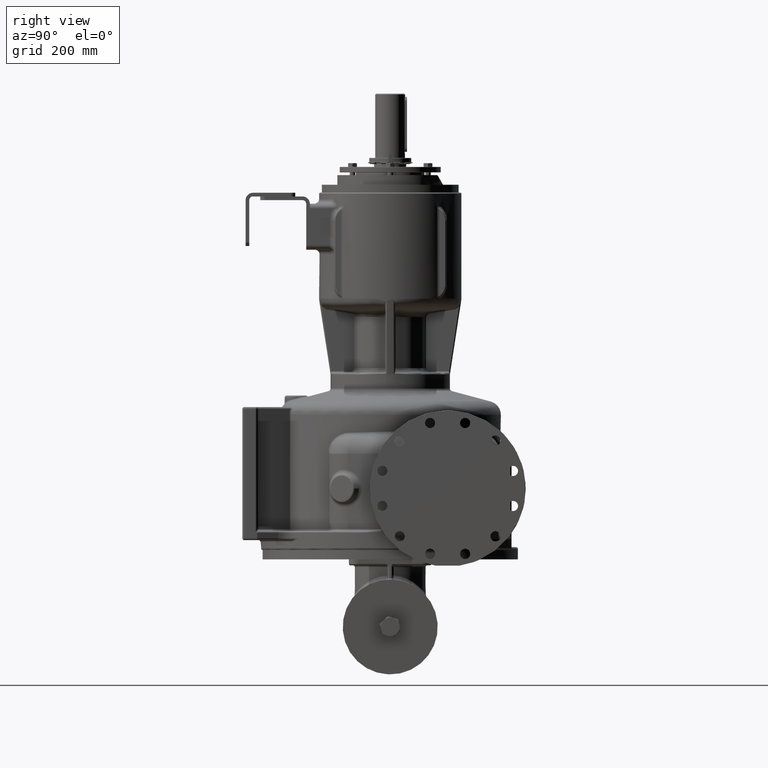
[diagram: clean part render]
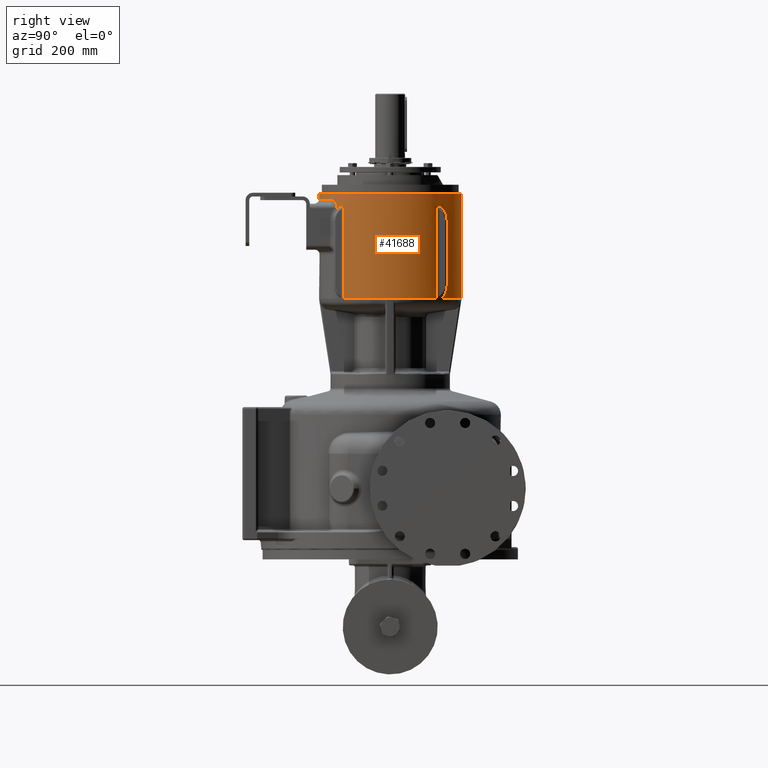
[diagram: same view with one face highlighted and labeled with its STEP entity id]
A machine part, right view. The second image highlights one B-rep face of the part: STEP entity #41688.
In plain terms, the highlighted cylindrical surface (partial cylindrical patch) has radius 155 mm, axis along (0, 0, -1).
Its self-contained STEP definition (entity closure, byte-faithful):
#2824=DIRECTION('',(0.E0,0.E0,-1.E0));
#2825=VECTOR('',#2824,2.28E2);
#2826=CARTESIAN_POINT('',(-2.290527877680E-14,4.77E2,6.415E2));
#2827=LINE('',#2826,#2825);
#2833=DIRECTION('',(0.E0,0.E0,-1.E0));
#2834=VECTOR('',#2833,1.15E1);
#2835=CARTESIAN_POINT('',(2.765063484533E-14,1.67E2,6.415E2));
#2836=LINE('',#2835,#2834);
#3296=CARTESIAN_POINT('',(1.158434894229E2,4.249819690985E2,4.135E2));
#3297=CARTESIAN_POINT('',(1.158977269843E2,4.249209577459E2,4.135538702345E2));
#3298=CARTESIAN_POINT('',(1.160038365956E2,4.248014021320E2,4.136630875072E2));
#3299=CARTESIAN_POINT('',(1.161562148142E2,4.246291898336E2,4.138312559516E2));
#3300=CARTESIAN_POINT('',(1.163014710546E2,4.244645457080E2,4.140029830678E2));
#3301=CARTESIAN_POINT('',(1.164394459883E2,4.243077182113E2,4.141776028084E2));
#3302=CARTESIAN_POINT('',(1.165699408765E2,4.241589995769E2,4.143543471143E2));
#3303=CARTESIAN_POINT('',(1.166927759043E2,4.240186597169E2,4.145323964927E2));
#3304=CARTESIAN_POINT('',(1.168077676349E2,4.238869713010E2,4.147108447614E2));
#3305=CARTESIAN_POINT('',(1.169147513303E2,4.237641837934E2,4.148887210568E2));
#3306=CARTESIAN_POINT('',(1.170135358185E2,4.236505748625E2,4.150648939879E2));
#3307=CARTESIAN_POINT('',(1.171039930826E2,4.235463469010E2,4.152382149360E2));
#3308=CARTESIAN_POINT('',(1.171859088444E2,4.234517986148E2,4.154072122002E2));
#3309=CARTESIAN_POINT('',(1.172591575351E2,4.233671232204E2,4.155703692041E2));
#3310=CARTESIAN_POINT('',(1.173237326800E2,4.232923716625E2,4.157262732698E2));
#3311=CARTESIAN_POINT('',(1.173791924083E2,4.232280949085E2,4.158721173375E2));
#3312=CARTESIAN_POINT('',(1.174101403523E2,4.231921904773E2,4.159613008023E2));
#3313=CARTESIAN_POINT('',(1.174242423677E2,4.231758237323E2,4.160038878351E2));
#3315=CARTESIAN_POINT('',(0.E0,3.22E2,4.135E2));
#3316=DIRECTION('',(0.E0,0.E0,-1.E0));
#3317=DIRECTION('',(7.473773510984E-1,6.643998006209E-1,0.E0));
#3318=AXIS2_PLACEMENT_3D('',#3315,#3316,#3317);
#3320=CARTESIAN_POINT('',(1.174242424277E2,2.208241763478E2,4.160038878404E2));
#3321=CARTESIAN_POINT('',(1.174100553051E2,2.208077108318E2,4.159610560299E2));
#3322=CARTESIAN_POINT('',(1.173789788374E2,2.207716574361E2,4.158715269751E2));
#3323=CARTESIAN_POINT('',(1.173236112823E2,2.207074877503E2,4.157259736738E2));
#3324=CARTESIAN_POINT('',(1.172589959611E2,2.206326898527E2,4.155699918954E2));
#3325=CARTESIAN_POINT('',(1.171857489545E2,2.205480167050E2,4.154068714782E2));
#3326=CARTESIAN_POINT('',(1.171038318326E2,2.204534671409E2,4.152378947331E2));
#3327=CARTESIAN_POINT('',(1.170133727458E2,2.203492374215E2,4.150645936097E2));
#3328=CARTESIAN_POINT('',(1.169145954820E2,2.202356371628E2,4.148884535686E2));
#3329=CARTESIAN_POINT('',(1.168076203947E2,2.201128599050E2,4.147106090700E2));
#3330=CARTESIAN_POINT('',(1.166926407261E2,2.199811856740E2,4.145321945139E2));
#3331=CARTESIAN_POINT('',(1.165698209827E2,2.198408636331E2,4.143541798259E2));
#3332=CARTESIAN_POINT('',(1.164393447309E2,2.196921665650E2,4.141774709646E2));
#3333=CARTESIAN_POINT('',(1.163013910706E2,2.195353635308E2,4.140028859600E2));
#3334=CARTESIAN_POINT('',(1.161561588036E2,2.193707468017E2,4.138311927013E2));
#3335=CARTESIAN_POINT('',(1.160038074234E2,2.191985649812E2,4.136630571143E2));
#3336=CARTESIAN_POINT('',(1.158977169912E2,2.190790310133E2,4.135538603259E2));
#3337=CARTESIAN_POINT('',(1.158434894149E2,2.190180308929E2,4.135E2));
#3339=CARTESIAN_POINT('',(1.116550175812E2,2.144911303757E2,6.152164266963E2));
#3340=CARTESIAN_POINT('',(1.117407777866E2,2.145801979836E2,6.152179197271E2));
#3341=CARTESIAN_POINT('',(1.119113312912E2,2.147577554202E2,6.152171860625E2));
#3342=CARTESIAN_POINT('',(1.121644020222E2,2.150224733720E2,6.152050794184E2));
#3343=CARTESIAN_POINT('',(1.124143444676E2,2.152851532526E2,6.151821278552E2));
#3344=CARTESIAN_POINT('',(1.126609601798E2,2.155455476408E2,6.151485107202E2));
#3345=CARTESIAN_POINT('',(1.129040239916E2,2.158033772539E2,6.151044172350E2));
#3346=CARTESIAN_POINT('',(1.131433136855E2,2.160583615532E2,6.150500520721E2));
#3347=CARTESIAN_POINT('',(1.133786046895E2,2.163102133987E2,6.149856362159E2));
#3348=CARTESIAN_POINT('',(1.136096730431E2,2.165586422433E2,6.149114060673E2));
#3349=CARTESIAN_POINT('',(1.138362965243E2,2.168033555243E2,6.148276169470E2));
#3350=CARTESIAN_POINT('',(1.140582492475E2,2.170440529676E2,6.147345435755E2));
#3351=CARTESIAN_POINT('',(1.142753083649E2,2.172804339723E2,6.146324807667E2));
#3352=CARTESIAN_POINT('',(1.144872520819E2,2.175121957139E2,6.145217456989E2));
#3353=CARTESIAN_POINT('',(1.146938525025E2,2.177390254588E2,6.144026819208E2));
#3354=CARTESIAN_POINT('',(1.148948938309E2,2.179606207776E2,6.142756534260E2));
#3355=CARTESIAN_POINT('',(1.150901497219E2,2.181766649323E2,6.141410586686E2));
#3356=CARTESIAN_POINT('',(1.152794011822E2,2.183868467997E2,6.139993217671E2));
#3357=CARTESIAN_POINT('',(1.154624313848E2,2.185908555382E2,6.138508990895E2));
#3358=CARTESIAN_POINT('',(1.156390229705E2,2.187883778817E2,6.136962834029E2));
#3359=CARTESIAN_POINT('',(1.158089608177E2,2.189791015464E2,6.135360052599E2));
#3360=CARTESIAN_POINT('',(1.159720350693E2,2.191627190205E2,6.133706340369E2));
#3361=CARTESIAN_POINT('',(1.161280368389E2,2.193389231399E2,6.132007862793E2));
#3362=CARTESIAN_POINT('',(1.162767611671E2,2.195074108082E2,6.130271274412E2));
#3363=CARTESIAN_POINT('',(1.164180071838E2,2.196678836185E2,6.128503776194E2));
#3364=CARTESIAN_POINT('',(1.165515785057E2,2.198200487466E2,6.126713179143E2));
#3365=CARTESIAN_POINT('',(1.166772831132E2,2.199636192756E2,6.124907985873E2));
#3366=CARTESIAN_POINT('',(1.167949305064E2,2.200983113650E2,6.123097543991E2));
#3367=CARTESIAN_POINT('',(1.169043490856E2,2.202238646936E2,6.121291885108E2));
#3368=CARTESIAN_POINT('',(1.170053403924E2,2.203399903468E2,6.119502688847E2));
#3369=CARTESIAN_POINT('',(1.170977718209E2,2.204464779081E2,6.117741816902E2));
#3370=CARTESIAN_POINT('',(1.171814230190E2,2.205430191215E2,6.116024433928E2));
#3371=CARTESIAN_POINT('',(1.172561667696E2,2.206294164989E2,6.114366155230E2));
#3372=CARTESIAN_POINT('',(1.173220044564E2,2.207056260972E2,6.112781380814E2));
#3373=CARTESIAN_POINT('',(1.173784725212E2,2.207710700059E2,6.111299252962E2));
#3374=CARTESIAN_POINT('',(1.174099251889E2,2.208075598054E2,6.110393492707E2));
#3375=CARTESIAN_POINT('',(1.174242424329E2,2.208241763434E2,6.109961121596E2));
#3377=CARTESIAN_POINT('',(1.052121211683E2,2.081781675632E2,6.116554927637E2));
#3378=CARTESIAN_POINT('',(1.053136224613E2,2.082719911539E2,6.117660458020E2));
#3379=CARTESIAN_POINT('',(1.055165510489E2,2.084600732637E2,6.119812808515E2));
#3380=CARTESIAN_POINT('',(1.058205194638E2,2.087433214732E2,6.122869010016E2));
#3381=CARTESIAN_POINT('',(1.061238061993E2,2.090274577184E2,6.125755848614E2));
#3382=CARTESIAN_POINT('',(1.064261176514E2,2.093122061011E2,6.128475888728E2));
#3383=CARTESIAN_POINT('',(1.067271595084E2,2.095972838764E2,6.131031652796E2));
#3384=CARTESIAN_POINT('',(1.070266681086E2,2.098824316337E2,6.133425904E2));
#3385=CARTESIAN_POINT('',(1.073243707953E2,2.101673759243E2,6.135661290084E2));
#3386=CARTESIAN_POINT('',(1.076200095619E2,2.104518517851E2,6.137740556769E2));
#3387=CARTESIAN_POINT('',(1.079133307872E2,2.107355931786E2,6.139666461322E2));
#3388=CARTESIAN_POINT('',(1.082040897373E2,2.110183374672E2,6.141441802951E2));
#3389=CARTESIAN_POINT('',(1.084920493832E2,2.112998245021E2,6.143069429927E2));
#3390=CARTESIAN_POINT('',(1.087769813746E2,2.115797977943E2,6.144552238157E2));
#3391=CARTESIAN_POINT('',(1.090586664264E2,2.118580051526E2,6.145893174264E2));
#3392=CARTESIAN_POINT('',(1.093368947556E2,2.121341993897E2,6.147095236129E2));
#3393=CARTESIAN_POINT('',(1.096114666330E2,2.124081391679E2,6.148161473061E2));
#3394=CARTESIAN_POINT('',(1.098821927389E2,2.126795896674E2,6.149094984667E2));
#3395=CARTESIAN_POINT('',(1.101488949120E2,2.129483236807E2,6.149898911409E2));
#3396=CARTESIAN_POINT('',(1.104114044480E2,2.132141202153E2,6.150576438298E2));
#3397=CARTESIAN_POINT('',(1.106695718085E2,2.134767747507E2,6.151130805512E2));
#3398=CARTESIAN_POINT('',(1.109232387850E2,2.137360712531E2,6.151565240517E2));
#3399=CARTESIAN_POINT('',(1.111722936887E2,2.139918386722E2,6.151883084531E2));
#3400=CARTESIAN_POINT('',(1.114166427789E2,2.142439233990E2,6.152087591977E2));
#3401=CARTESIAN_POINT('',(1.115761108399E2,2.144091805987E2,6.152150530297E2));
#3402=CARTESIAN_POINT('',(1.116550175812E2,2.144911303757E2,6.152164266963E2));
#3404=CARTESIAN_POINT('',(1.033333318994E2,2.064698199562E2,6.095014018920E2));
#3405=CARTESIAN_POINT('',(1.035340163868E2,2.066493177487E2,6.097437922738E2));
#3406=CARTESIAN_POINT('',(1.039407967975E2,2.070150332801E2,6.102266633830E2));
#3407=CARTESIAN_POINT('',(1.045676791809E2,2.075847617464E2,6.109455245852E2));
#3408=CARTESIAN_POINT('',(1.049955936067E2,2.079780187123E2,6.114196559915E2));
#3409=CARTESIAN_POINT('',(1.052121211683E2,2.081781675632E2,6.116554927637E2));
#3411=DIRECTION('',(2.880458152231E-6,2.414281749473E-6,9.999999999929E-1));
#3412=VECTOR('',#3411,4.985981079755E-1);
#3413=CARTESIAN_POINT('',(1.033333318994E2,2.064698199562E2,6.095014018920E2));
#3414=LINE('',#3413,#3412);
#3415=CARTESIAN_POINT('',(1.033333333356E2,2.064698211600E2,6.1E2));
#3416=CARTESIAN_POINT('',(1.033333332596E2,2.064698210333E2,6.101498847398E2));
#3417=CARTESIAN_POINT('',(1.033301685819E2,2.064669904348E2,6.104497085775E2));
#3418=CARTESIAN_POINT('',(1.033159043226E2,2.064542336391E2,6.108996796709E2));
#3419=CARTESIAN_POINT('',(1.032921003160E2,2.064329523927E2,6.113496693140E2));
#3420=CARTESIAN_POINT('',(1.032587168381E2,2.064031217465E2,6.117997150504E2));
#3421=CARTESIAN_POINT('',(1.032157004549E2,2.063647089258E2,6.122497983394E2));
#3422=CARTESIAN_POINT('',(1.031629821656E2,2.063176716760E2,6.126999197115E2));
#3423=CARTESIAN_POINT('',(1.031004781561E2,2.062619590946E2,6.131500697538E2));
#3424=CARTESIAN_POINT('',(1.030280907222E2,2.061975126052E2,6.136002286109E2));
#3425=CARTESIAN_POINT('',(1.029457085178E2,2.061242663627E2,6.140503659804E2));
#3426=CARTESIAN_POINT('',(1.028532075368E2,2.060421483325E2,6.145004378810E2));
#3427=CARTESIAN_POINT('',(1.027504517719E2,2.059510811009E2,6.149503860506E2));
#3428=CARTESIAN_POINT('',(1.026372946414E2,2.058509833819E2,6.154001343176E2));
#3429=CARTESIAN_POINT('',(1.025135801545E2,2.057417712997E2,6.158495878633E2));
#3430=CARTESIAN_POINT('',(1.023791436794E2,2.056233593278E2,6.162986330236E2));
#3431=CARTESIAN_POINT('',(1.022338136878E2,2.054956620922E2,6.167471345625E2));
#3432=CARTESIAN_POINT('',(1.020774134378E2,2.053585961092E2,6.171949339523E2));
#3433=CARTESIAN_POINT('',(1.019097628414E2,2.052120816720E2,6.176418478040E2));
#3434=CARTESIAN_POINT('',(1.017306806068E2,2.050560449504E2,6.180876663524E2));
#3435=CARTESIAN_POINT('',(1.015399865482E2,2.048904202020E2,6.185321521035E2));
#3436=CARTESIAN_POINT('',(1.013375041764E2,2.047151521793E2,6.189750387659E2));
#3437=CARTESIAN_POINT('',(1.011230630015E2,2.045301982301E2,6.194160298881E2));
#3438=CARTESIAN_POINT('',(1.008965016734E2,2.043355310535E2,6.198547981735E2));
#3439=CARTESIAN_POINT('',(1.006576711102E2,2.041311413557E2,6.202909849835E2));
#3440=CARTESIAN_POINT('',(1.004064375826E2,2.039170403692E2,6.207242002655E2));
#3441=CARTESIAN_POINT('',(1.001426859441E2,2.036932623857E2,6.211540228444E2));
#3442=CARTESIAN_POINT('',(9.986632294389E1,2.034598672362E2,6.215800010562E2));
#3443=CARTESIAN_POINT('',(9.957728045286E1,2.032169425617E2,6.220016536616E2));
#3444=CARTESIAN_POINT('',(9.927551832032E1,2.029646056351E2,6.224184706649E2));
#3445=CARTESIAN_POINT('',(9.896102839418E1,2.027030060055E2,6.228299165043E2));
#3446=CARTESIAN_POINT('',(9.863383691712E1,2.024323266219E2,6.232354319910E2));
#3447=CARTESIAN_POINT('',(9.829400726332E1,2.021527850947E2,6.236344374962E2));
#3448=CARTESIAN_POINT('',(9.794164212137E1,2.018646343497E2,6.240263363501E2));
#3449=CARTESIAN_POINT('',(9.757688547686E1,2.015681629786E2,6.244105189612E2));
#3450=CARTESIAN_POINT('',(9.719992346377E1,2.012636945447E2,6.247863662734E2));
#3451=CARTESIAN_POINT('',(9.681098570920E1,2.009515871884E2,6.251532549819E2));
#3452=CARTESIAN_POINT('',(9.641034566017E1,2.006322323161E2,6.255105628172E2));
#3453=CARTESIAN_POINT('',(9.599831989149E1,2.003060524207E2,6.258576730880E2));
#3454=CARTESIAN_POINT('',(9.557526718582E1,1.999734987028E2,6.261939797789E2));
#3455=CARTESIAN_POINT('',(9.514158685880E1,1.996350481019E2,6.265188924093E2));
#3456=CARTESIAN_POINT('',(9.469771657830E1,1.992911999737E2,6.268318409439E2));
#3457=CARTESIAN_POINT('',(9.424412938094E1,1.989424722211E2,6.271322792767E2));
#3458=CARTESIAN_POINT('',(9.378133106602E1,1.985893978217E2,6.274196906816E2));
#3459=CARTESIAN_POINT('',(9.330985625392E1,1.982325204558E2,6.276935908850E2));
#3460=CARTESIAN_POINT('',(9.283026457030E1,1.978723904002E2,6.279535311379E2));
#3461=CARTESIAN_POINT('',(9.234313658856E1,1.975095604155E2,6.281991006912E2));
#3462=CARTESIAN_POINT('',(9.184906964802E1,1.971445817362E2,6.284299287435E2));
#3463=CARTESIAN_POINT('',(9.134867363529E1,1.967780002371E2,6.286456856396E2));
#3464=CARTESIAN_POINT('',(9.084256684109E1,1.964103528640E2,6.288460833677E2));
#3465=CARTESIAN_POINT('',(9.033137213781E1,1.960421645029E2,6.290308764910E2));
#3466=CARTESIAN_POINT('',(8.981571281468E1,1.956739448031E2,6.291998613488E2));
#3467=CARTESIAN_POINT('',(8.929620922222E1,1.953061857804E2,6.293528752732E2));
#3468=CARTESIAN_POINT('',(8.877347563554E1,1.949393597443E2,6.294897952674E2));
#3469=CARTESIAN_POINT('',(8.824811734688E1,1.945739175564E2,6.296105364354E2));
#3470=CARTESIAN_POINT('',(8.772072914549E1,1.942102879583E2,6.297150498233E2));
#3471=CARTESIAN_POINT('',(8.719188820567E1,1.938488732637E2,6.298033211405E2));
#3472=CARTESIAN_POINT('',(8.666216730602E1,1.934900588838E2,6.298753667674E2));
#3473=CARTESIAN_POINT('',(8.613209686126E1,1.931341884942E2,6.299312349520E2));
#3474=CARTESIAN_POINT('',(8.560223922629E1,1.927816144402E2,6.299709972104E2));
#3475=CARTESIAN_POINT('',(8.507308110233E1,1.924326270471E2,6.299947522683E2));
#3476=CARTESIAN_POINT('',(8.472120066644E1,1.922026112745E2,6.299999999641E2));
#3477=CARTESIAN_POINT('',(8.454545454475E1,1.920882371938E2,6.3E2));
#3479=CARTESIAN_POINT('',(0.E0,3.22E2,6.3E2));
#3480=DIRECTION('',(0.E0,0.E0,-1.E0));
#3481=DIRECTION('',(5.454545454545E-1,-8.381404052084E-1,0.E0));
#3482=AXIS2_PLACEMENT_3D('',#3479,#3480,#3481);
#3484=CARTESIAN_POINT('',(0.E0,3.22E2,6.415E2));
#3485=DIRECTION('',(0.E0,0.E0,-1.E0));
#3486=DIRECTION('',(0.E0,1.E0,0.E0));
#3487=AXIS2_PLACEMENT_3D('',#3484,#3485,#3486);
#3489=CARTESIAN_POINT('',(0.E0,3.22E2,4.135E2));
#3490=DIRECTION('',(0.E0,0.E0,-1.E0));
#3491=DIRECTION('',(0.E0,1.E0,0.E0));
#3492=AXIS2_PLACEMENT_3D('',#3489,#3490,#3491);
#3494=CARTESIAN_POINT('',(1.052121211683E2,4.358218324367E2,4.153445072363E2));
#3495=CARTESIAN_POINT('',(1.053094022851E2,4.357319098015E2,4.152385507278E2));
#3496=CARTESIAN_POINT('',(1.055038979954E2,4.355516637090E2,4.150320290819E2));
#3497=CARTESIAN_POINT('',(1.057952661074E2,4.352802478378E2,4.147380835666E2));
#3498=CARTESIAN_POINT('',(1.060860251100E2,4.350080003829E2,4.144597212125E2));
#3499=CARTESIAN_POINT('',(1.063759214600E2,4.347351591003E2,4.141967105927E2));
#3500=CARTESIAN_POINT('',(1.066646978088E2,4.344619705394E2,4.139488269904E2));
#3501=CARTESIAN_POINT('',(1.069521230840E2,4.341886608970E2,4.137158290009E2));
#3502=CARTESIAN_POINT('',(1.071425674865E2,4.340066404368E2,4.135703461798E2));
#3503=CARTESIAN_POINT('',(1.072374921799E2,4.339156837415E2,4.135E2));
#3505=CARTESIAN_POINT('',(9.300000000034E1,4.460000000005E2,4.435E2));
#3506=CARTESIAN_POINT('',(9.300000009669E1,4.459999999481E2,4.432776094501E2));
#3507=CARTESIAN_POINT('',(9.300442465859E1,4.459966816820E2,4.428326016548E2));
#3508=CARTESIAN_POINT('',(9.302437735072E1,4.459817146714E2,4.421644135250E2));
#3509=CARTESIAN_POINT('',(9.305768688335E1,4.459567171650E2,4.414955380047E2));
#3510=CARTESIAN_POINT('',(9.310442518708E1,4.459216183174E2,4.408256086882E2));
#3511=CARTESIAN_POINT('',(9.316469600358E1,4.458763163413E2,4.401542677377E2));
#3512=CARTESIAN_POINT('',(9.323863047447E1,4.458206815600E2,4.394811761900E2));
#3513=CARTESIAN_POINT('',(9.332638885404E1,4.457545547381E2,4.388059958848E2));
#3514=CARTESIAN_POINT('',(9.342815944998E1,4.456777474179E2,4.381283974197E2));
#3515=CARTESIAN_POINT('',(9.354415757162E1,4.455900421628E2,4.374480640196E2));
#3516=CARTESIAN_POINT('',(9.367462464415E1,4.454911925925E2,4.367646920335E2));
#3517=CARTESIAN_POINT('',(9.381982899549E1,4.453809220582E2,4.360779844746E2));
#3518=CARTESIAN_POINT('',(9.398006476022E1,4.452589236415E2,4.353876560980E2));
#3519=CARTESIAN_POINT('',(9.415564993122E1,4.451248607129E2,4.346934393162E2));
#3520=CARTESIAN_POINT('',(9.434692517913E1,4.449783668148E2,4.339950852217E2));
#3521=CARTESIAN_POINT('',(9.455425186389E1,4.448190460715E2,4.332923671834E2));
#3522=CARTESIAN_POINT('',(9.477800984368E1,4.446464736679E2,4.325850838998E2));
#3523=CARTESIAN_POINT('',(9.501859476094E1,4.444601966537E2,4.318730630849E2));
#3524=CARTESIAN_POINT('',(9.527641489901E1,4.442597350109E2,4.311561654519E2));
#3525=CARTESIAN_POINT('',(9.555188759376E1,4.440445830116E2,4.304342887119E2));
#3526=CARTESIAN_POINT('',(9.584543446627E1,4.438142114599E2,4.297073733995E2));
#3527=CARTESIAN_POINT('',(9.615747423518E1,4.435680718484E2,4.289754125201E2));
#3528=CARTESIAN_POINT('',(9.648841853257E1,4.433055982079E2,4.282384519205E2));
#3529=CARTESIAN_POINT('',(9.683866730723E1,4.430262093065E2,4.274965917370E2));
#3530=CARTESIAN_POINT('',(9.720860093126E1,4.427293135589E2,4.267499939272E2));
#3531=CARTESIAN_POINT('',(9.759857089629E1,4.424143152676E2,4.259988910157E2));
#3532=CARTESIAN_POINT('',(9.800889222562E1,4.420806197408E2,4.252435902355E2));
#3533=CARTESIAN_POINT('',(9.843983288861E1,4.417276411494E2,4.244844797113E2));
#3534=CARTESIAN_POINT('',(9.889160404644E1,4.413548101460E2,4.237220333577E2));
#3535=CARTESIAN_POINT('',(9.936434936997E1,4.409615827481E2,4.229568154093E2));
#3536=CARTESIAN_POINT('',(9.985813447105E1,4.405474497437E2,4.221894839252E2));
#3537=CARTESIAN_POINT('',(1.003729364588E2,4.401119466950E2,4.214207924914E2));
#3538=CARTESIAN_POINT('',(1.009086352882E2,4.396546632112E2,4.206515908361E2));
#3539=CARTESIAN_POINT('',(1.014650053798E2,4.391752527808E2,4.198828215060E2));
#3540=CARTESIAN_POINT('',(1.020417016559E2,4.386734484110E2,4.191155252328E2));
#3541=CARTESIAN_POINT('',(1.026382667771E2,4.381490609340E2,4.183508174712E2));
#3542=CARTESIAN_POINT('',(1.032541172615E2,4.376019958851E2,4.175898970903E2));
#3543=CARTESIAN_POINT('',(1.038885120899E2,4.370322893288E2,4.168340655180E2));
#3544=CARTESIAN_POINT('',(1.045406935210E2,4.364399848561E2,4.160845641250E2));
#3545=CARTESIAN_POINT('',(1.049864518125E2,4.360304315727E2,4.155903010377E2));
#3546=CARTESIAN_POINT('',(1.052121211683E2,4.358218324367E2,4.153445072363E2));
#3548=DIRECTION('',(3.451207573692E-13,4.600256683521E-13,-1.E0));
#3549=VECTOR('',#3548,1.4E2);
#3550=CARTESIAN_POINT('',(9.300000000029E1,4.460000000004E2,5.835E2));
#3551=LINE('',#3550,#3549);
#3552=CARTESIAN_POINT('',(1.052121211683E2,4.358218324367E2,6.116554927637E2));
#3553=CARTESIAN_POINT('',(1.049864520330E2,4.360304313689E2,6.114096992025E2));
#3554=CARTESIAN_POINT('',(1.045406940612E2,4.364399843622E2,6.109154364828E2));
#3555=CARTESIAN_POINT('',(1.038885125372E2,4.370322889253E2,6.101659350071E2));
#3556=CARTESIAN_POINT('',(1.032541177211E2,4.376019954742E2,6.094101034658E2));
#3557=CARTESIAN_POINT('',(1.026382673162E2,4.381490604574E2,6.086491832050E2));
#3558=CARTESIAN_POINT('',(1.020417022659E2,4.386734478772E2,6.078844755613E2));
#3559=CARTESIAN_POINT('',(1.014650061054E2,4.391752521521E2,6.071171794749E2));
#3560=CARTESIAN_POINT('',(1.009086361505E2,4.396546624712E2,6.063484103759E2));
#3561=CARTESIAN_POINT('',(1.003729374817E2,4.401119458252E2,6.055792090044E2));
#3562=CARTESIAN_POINT('',(9.985813567400E1,4.405474487299E2,6.048105179020E2));
#3563=CARTESIAN_POINT('',(9.936435076474E1,4.409615815826E2,6.040431867953E2));
#3564=CARTESIAN_POINT('',(9.889160563871E1,4.413548088263E2,6.032779692657E2));
#3565=CARTESIAN_POINT('',(9.843983467767E1,4.417276396781E2,6.025155233655E2));
#3566=CARTESIAN_POINT('',(9.800889420325E1,4.420806181263E2,6.017564133187E2));
#3567=CARTESIAN_POINT('',(9.759857304715E1,4.424143135240E2,6.010011130280E2));
#3568=CARTESIAN_POINT('',(9.720860323145E1,4.427293117066E2,6.002500106018E2));
#3569=CARTESIAN_POINT('',(9.683866973075E1,4.430262073672E2,5.995034132633E2));
#3570=CARTESIAN_POINT('',(9.648842103229E1,4.433055962195E2,5.987615534981E2));
#3571=CARTESIAN_POINT('',(9.615747678539E1,4.435680698312E2,5.980245932989E2));
#3572=CARTESIAN_POINT('',(9.584543700338E1,4.438142094637E2,5.972926327101E2));
#3573=CARTESIAN_POINT('',(9.555189000106E1,4.440445811271E2,5.965657174204E2));
#3574=CARTESIAN_POINT('',(9.527641712364E1,4.442597332775E2,5.958438405533E2));
#3575=CARTESIAN_POINT('',(9.501859683159E1,4.444601950472E2,5.951269428537E2));
#3576=CARTESIAN_POINT('',(9.477801175933E1,4.446464721876E2,5.944149219575E2));
#3577=CARTESIAN_POINT('',(9.455425363042E1,4.448190447116E2,5.937076385969E2));
#3578=CARTESIAN_POINT('',(9.434692680161E1,4.449783655702E2,5.930049204849E2));
#3579=CARTESIAN_POINT('',(9.415565141284E1,4.451248595799E2,5.923065663122E2));
#3580=CARTESIAN_POINT('',(9.398006610963E1,4.452589226128E2,5.916123494711E2));
#3581=CARTESIAN_POINT('',(9.381983020765E1,4.453809211365E2,5.909220209957E2));
#3582=CARTESIAN_POINT('',(9.367462574179E1,4.454911917600E2,5.902353134224E2));
#3583=CARTESIAN_POINT('',(9.354415854332E1,4.455900414274E2,5.895519413701E2));
#3584=CARTESIAN_POINT('',(9.342816016762E1,4.456777468759E2,5.888716071138E2));
#3585=CARTESIAN_POINT('',(9.332638920998E1,4.457545544698E2,5.881940067524E2));
#3586=CARTESIAN_POINT('',(9.323863052538E1,4.458206815217E2,5.875188243369E2));
#3587=CARTESIAN_POINT('',(9.316469580053E1,4.458763164941E2,5.868457304278E2));
#3588=CARTESIAN_POINT('',(9.310442479127E1,4.459216186147E2,5.861743864426E2));
#3589=CARTESIAN_POINT('',(9.305768665062E1,4.459567173397E2,5.855044578886E2));
#3590=CARTESIAN_POINT('',(9.302437725390E1,4.459817147438E2,5.848355838239E2));
#3591=CARTESIAN_POINT('',(9.300442464539E1,4.459966816926E2,5.841673970585E2));
#3592=CARTESIAN_POINT('',(9.300000009101E1,4.459999999509E2,5.837223901292E2));
#3593=CARTESIAN_POINT('',(9.300000000029E1,4.460000000004E2,5.835E2));
#3595=CARTESIAN_POINT('',(1.116550175421E2,4.295088696639E2,6.152164266957E2));
#3596=CARTESIAN_POINT('',(1.115761115503E2,4.295908186586E2,6.152150530489E2));
#3597=CARTESIAN_POINT('',(1.114166447896E2,4.297560745227E2,6.152087593051E2));
#3598=CARTESIAN_POINT('',(1.111722963455E2,4.300081585911E2,6.151883087111E2));
#3599=CARTESIAN_POINT('',(1.109232428103E2,4.302639246211E2,6.151565246319E2));
#3600=CARTESIAN_POINT('',(1.106695762201E2,4.305232207509E2,6.151130814044E2));
#3601=CARTESIAN_POINT('',(1.104114083580E2,4.307858758168E2,6.150576447607E2));
#3602=CARTESIAN_POINT('',(1.101488988099E2,4.310516723823E2,6.149898922375E2));
#3603=CARTESIAN_POINT('',(1.098821964487E2,4.313204066041E2,6.149094996784E2));
#3604=CARTESIAN_POINT('',(1.096114701979E2,4.315918572667E2,6.148161486197E2));
#3605=CARTESIAN_POINT('',(1.093368981410E2,4.318657972415E2,6.147095249994E2));
#3606=CARTESIAN_POINT('',(1.090586696259E2,4.321419916798E2,6.145893188761E2));
#3607=CARTESIAN_POINT('',(1.087769843791E2,4.324201992463E2,6.144552253114E2));
#3608=CARTESIAN_POINT('',(1.084920521836E2,4.327001727537E2,6.143069445152E2));
#3609=CARTESIAN_POINT('',(1.082040923263E2,4.329816600090E2,6.141441818230E2));
#3610=CARTESIAN_POINT('',(1.079133331579E2,4.332644045225E2,6.139666476437E2));
#3611=CARTESIAN_POINT('',(1.076200117107E2,4.335481461423E2,6.137740571461E2));
#3612=CARTESIAN_POINT('',(1.073243727079E2,4.338326222406E2,6.135661303995E2));
#3613=CARTESIAN_POINT('',(1.070266698194E2,4.341175667337E2,6.133425917271E2));
#3614=CARTESIAN_POINT('',(1.067271609017E2,4.344027148013E2,6.131031664312E2));
#3615=CARTESIAN_POINT('',(1.064261187103E2,4.346877928994E2,6.128475898042E2));
#3616=CARTESIAN_POINT('',(1.061238069171E2,4.349725416080E2,6.125755855320E2));
#3617=CARTESIAN_POINT('',(1.058205198521E2,4.352566781644E2,6.122869013895E2));
#3618=CARTESIAN_POINT('',(1.055165512180E2,4.355399265795E2,6.119812810287E2));
#3619=CARTESIAN_POINT('',(1.053136225107E2,4.357280088004E2,6.117660458562E2));
#3620=CARTESIAN_POINT('',(1.052121211683E2,4.358218324367E2,6.116554927637E2));
#3622=CARTESIAN_POINT('',(1.174242424277E2,4.231758236522E2,6.109961121596E2));
#3623=CARTESIAN_POINT('',(1.174098403701E2,4.231925386213E2,6.110395932697E2));
#3624=CARTESIAN_POINT('',(1.173782584615E2,4.232291782139E2,6.111305166930E2));
#3625=CARTESIAN_POINT('',(1.173218762251E2,4.232945224037E2,6.112784545205E2));
#3626=CARTESIAN_POINT('',(1.172559890822E2,4.233707890608E2,6.114370292327E2));
#3627=CARTESIAN_POINT('',(1.171812366726E2,4.234571961059E2,6.116028394687E2));
#3628=CARTESIAN_POINT('',(1.170975712033E2,4.235537534296E2,6.117745784767E2));
#3629=CARTESIAN_POINT('',(1.170051236582E2,4.236602591107E2,6.119506664032E2));
#3630=CARTESIAN_POINT('',(1.169041241947E2,4.237763936310E2,6.121295725810E2));
#3631=CARTESIAN_POINT('',(1.167946967723E2,4.239019565364E2,6.123101264689E2));
#3632=CARTESIAN_POINT('',(1.166770424453E2,4.240366559295E2,6.124911560239E2));
#3633=CARTESIAN_POINT('',(1.165513326302E2,4.241802317147E2,6.126716587970E2));
#3634=CARTESIAN_POINT('',(1.164177576224E2,4.243324002967E2,6.128507005705E2));
#3635=CARTESIAN_POINT('',(1.162765094897E2,4.244928747175E2,6.130274313832E2));
#3636=CARTESIAN_POINT('',(1.161277844968E2,4.246613623030E2,6.132010705129E2));
#3637=CARTESIAN_POINT('',(1.159717834354E2,4.248375647501E2,6.133708982015E2));
#3638=CARTESIAN_POINT('',(1.158087114471E2,4.250211787738E2,6.135362488881E2));
#3639=CARTESIAN_POINT('',(1.156387772211E2,4.252118974512E2,6.136965064646E2));
#3640=CARTESIAN_POINT('',(1.154621904016E2,4.254094135253E2,6.138511019075E2));
#3641=CARTESIAN_POINT('',(1.152791666435E2,4.256134141361E2,6.139995043710E2));
#3642=CARTESIAN_POINT('',(1.150899225648E2,4.258235868638E2,6.141412216228E2));
#3643=CARTESIAN_POINT('',(1.148946750648E2,4.260396208002E2,6.142757975933E2));
#3644=CARTESIAN_POINT('',(1.146936440515E2,4.262612038345E2,6.144028075358E2));
#3645=CARTESIAN_POINT('',(1.144870543468E2,4.264880209272E2,6.145218539742E2));
#3646=CARTESIAN_POINT('',(1.142751223100E2,4.267197690406E2,6.146325727862E2));
#3647=CARTESIAN_POINT('',(1.140580763769E2,4.269561348737E2,6.147346201819E2));
#3648=CARTESIAN_POINT('',(1.138361374904E2,4.271968165484E2,6.148276793335E2));
#3649=CARTESIAN_POINT('',(1.136095285455E2,4.274415134236E2,6.149114557235E2));
#3650=CARTESIAN_POINT('',(1.133784761472E2,4.276899244687E2,6.149856741406E2));
#3651=CARTESIAN_POINT('',(1.131432013843E2,4.279417583550E2,6.150500799053E2));
#3652=CARTESIAN_POINT('',(1.129039286970E2,4.281967240309E2,6.151044364227E2));
#3653=CARTESIAN_POINT('',(1.126608827620E2,4.284545342605E2,6.151485227166E2));
#3654=CARTESIAN_POINT('',(1.124142855892E2,4.287149087395E2,6.151821342968E2));
#3655=CARTESIAN_POINT('',(1.121643621258E2,4.289775684270E2,6.152050819073E2));
#3656=CARTESIAN_POINT('',(1.119113107965E2,4.292422659344E2,6.152171863129E2));
#3657=CARTESIAN_POINT('',(1.117407708438E2,4.294198092262E2,6.152179196067E2));
#3658=CARTESIAN_POINT('',(1.116550175421E2,4.295088696639E2,6.152164266957E2));
#3689=DIRECTION('',(3.078064879111E-10,-4.112517157930E-10,1.E0));
#3690=VECTOR('',#3689,1.949922243246E2);
#3691=CARTESIAN_POINT('',(1.174242423677E2,4.231758237323E2,4.160038878351E2));
#3692=LINE('',#3691,#3690);
#4113=CARTESIAN_POINT('',(1.158434894149E2,2.190180308929E2,4.135E2));
#4153=CARTESIAN_POINT('',(1.072374921799E2,4.339156837415E2,4.135E2));
#8687=CARTESIAN_POINT('',(1.174242424329E2,2.208241763434E2,6.109961121596E2));
#8723=DIRECTION('',(-2.670938265308E-11,2.301346566107E-11,-1.E0));
#8724=VECTOR('',#8723,1.949922243193E2);
#8725=CARTESIAN_POINT('',(1.174242424329E2,2.208241763434E2,6.109961121596E2));
#8726=LINE('',#8725,#8724);
#31963=CARTESIAN_POINT('',(1.174242423677E2,4.231758237323E2,4.160038878351E2));
#35610=CARTESIAN_POINT('',(-1.898201538678E-14,1.67E2,6.415E2));
#35611=CARTESIAN_POINT('',(0.E0,4.77E2,6.415E2));
#35612=VERTEX_POINT('',#35610);
#35613=VERTEX_POINT('',#35611);
#35619=CARTESIAN_POINT('',(6.679166141972E-14,4.77E2,4.135E2));
#35621=VERTEX_POINT('',#35619);
#35695=VERTEX_POINT('',#31963);
#35696=VERTEX_POINT('',#3296);
#35700=VERTEX_POINT('',#4153);
#35702=VERTEX_POINT('',#3494);
#35704=VERTEX_POINT('',#3505);
#35707=CARTESIAN_POINT('',(9.300000000029E1,4.460000000004E2,5.835E2));
#35708=VERTEX_POINT('',#35707);
#35710=VERTEX_POINT('',#3552);
#35712=VERTEX_POINT('',#3595);
#35713=VERTEX_POINT('',#3622);
#35732=VERTEX_POINT('',#3377);
#35733=VERTEX_POINT('',#3402);
#35734=VERTEX_POINT('',#8687);
#35744=VERTEX_POINT('',#4113);
#35745=VERTEX_POINT('',#3320);
#35746=CARTESIAN_POINT('',(-1.898201538678E-14,1.67E2,6.3E2));
#35748=VERTEX_POINT('',#35746);
#35795=CARTESIAN_POINT('',(1.033333328064E2,2.064698207832E2,6.095014029583E2));
#35796=VERTEX_POINT('',#35795);
#35797=CARTESIAN_POINT('',(1.033333333356E2,2.064698211600E2,6.1E2));
#35798=VERTEX_POINT('',#35797);
#35801=VERTEX_POINT('',#3477);
#41643=CARTESIAN_POINT('',(0.E0,3.22E2,6.66E2));
#41644=DIRECTION('',(0.E0,0.E0,-1.E0));
#41645=DIRECTION('',(0.E0,1.E0,0.E0));
#41646=AXIS2_PLACEMENT_3D('',#41643,#41644,#41645);
#41647=CYLINDRICAL_SURFACE('',#41646,1.55E2);
#41649=ORIENTED_EDGE('',*,*,#41648,.F.);
#41651=ORIENTED_EDGE('',*,*,#41650,.F.);
#41653=ORIENTED_EDGE('',*,*,#41652,.T.);
#41655=ORIENTED_EDGE('',*,*,#41654,.F.);
#41657=ORIENTED_EDGE('',*,*,#41656,.F.);
#41659=ORIENTED_EDGE('',*,*,#41658,.F.);
#41661=ORIENTED_EDGE('',*,*,#41660,.F.);
#41663=ORIENTED_EDGE('',*,*,#41662,.F.);
#41665=ORIENTED_EDGE('',*,*,#41664,.T.);
#41666=ORIENTED_EDGE('',*,*,#41634,.T.);
#41667=ORIENTED_EDGE('',*,*,#41296,.T.);
#41668=ORIENTED_EDGE('',*,*,#40555,.F.);
#41670=ORIENTED_EDGE('',*,*,#41669,.F.);
#41671=ORIENTED_EDGE('',*,*,#40552,.T.);
#41673=ORIENTED_EDGE('',*,*,#41672,.T.);
#41675=ORIENTED_EDGE('',*,*,#41674,.F.);
#41677=ORIENTED_EDGE('',*,*,#41676,.F.);
#41679=ORIENTED_EDGE('',*,*,#41678,.F.);
#41681=ORIENTED_EDGE('',*,*,#41680,.F.);
#41683=ORIENTED_EDGE('',*,*,#41682,.F.);
#41685=ORIENTED_EDGE('',*,*,#41684,.F.);
#41686=EDGE_LOOP('',(#41649,#41651,#41653,#41655,#41657,#41659,#41661,#41663,
#41665,#41666,#41667,#41668,#41670,#41671,#41673,#41675,#41677,#41679,#41681,
#41683,#41685));
#41687=FACE_OUTER_BOUND('',#41686,.F.);
#41688=ADVANCED_FACE('',(#41687),#41647,.T.);
#3314=B_SPLINE_CURVE_WITH_KNOTS('',3,(#3296,#3297,#3298,#3299,#3300,#3301,#3302,
#3303,#3304,#3305,#3306,#3307,#3308,#3309,#3310,#3311,#3312,#3313),
.UNSPECIFIED.,.F.,.F.,(4,1,1,1,1,1,1,1,1,1,1,1,1,1,1,4),(0.E0,6.666666666667E-2,
1.333333333333E-1,2.E-1,2.666666666667E-1,3.333333333333E-1,4.E-1,
4.666666666667E-1,5.333333333333E-1,6.E-1,6.666666666667E-1,7.333333333333E-1,
8.E-1,8.666666666667E-1,9.333333333333E-1,1.E0),.UNSPECIFIED.);
#3319=CIRCLE('',#3318,1.55E2);
#3338=B_SPLINE_CURVE_WITH_KNOTS('',3,(#3320,#3321,#3322,#3323,#3324,#3325,#3326,
#3327,#3328,#3329,#3330,#3331,#3332,#3333,#3334,#3335,#3336,#3337),
.UNSPECIFIED.,.F.,.F.,(4,1,1,1,1,1,1,1,1,1,1,1,1,1,1,4),(0.E0,6.666666666667E-2,
1.333333333333E-1,2.E-1,2.666666666667E-1,3.333333333333E-1,4.E-1,
4.666666666667E-1,5.333333333333E-1,6.E-1,6.666666666667E-1,7.333333333333E-1,
8.E-1,8.666666666667E-1,9.333333333333E-1,1.E0),.UNSPECIFIED.);
#3376=B_SPLINE_CURVE_WITH_KNOTS('',3,(#3339,#3340,#3341,#3342,#3343,#3344,#3345,
#3346,#3347,#3348,#3349,#3350,#3351,#3352,#3353,#3354,#3355,#3356,#3357,#3358,
#3359,#3360,#3361,#3362,#3363,#3364,#3365,#3366,#3367,#3368,#3369,#3370,#3371,
#3372,#3373,#3374,#3375),.UNSPECIFIED.,.F.,.F.,(4,1,1,1,1,1,1,1,1,1,1,1,1,1,1,1,
1,1,1,1,1,1,1,1,1,1,1,1,1,1,1,1,1,1,4),(0.E0,2.941176470588E-2,
5.882352941176E-2,8.823529411765E-2,1.176470588235E-1,1.470588235294E-1,
1.764705882353E-1,2.058823529412E-1,2.352941176471E-1,2.647058823529E-1,
2.941176470588E-1,3.235294117647E-1,3.529411764706E-1,3.823529411765E-1,
4.117647058824E-1,4.411764705882E-1,4.705882352941E-1,5.E-1,5.294117647059E-1,
5.588235294118E-1,5.882352941176E-1,6.176470588235E-1,6.470588235294E-1,
6.764705882353E-1,7.058823529412E-1,7.352941176471E-1,7.647058823529E-1,
7.941176470588E-1,8.235294117647E-1,8.529411764706E-1,8.823529411765E-1,
9.117647058824E-1,9.411764705882E-1,9.705882352941E-1,1.E0),.UNSPECIFIED.);
#3403=B_SPLINE_CURVE_WITH_KNOTS('',3,(#3377,#3378,#3379,#3380,#3381,#3382,#3383,
#3384,#3385,#3386,#3387,#3388,#3389,#3390,#3391,#3392,#3393,#3394,#3395,#3396,
#3397,#3398,#3399,#3400,#3401,#3402),.UNSPECIFIED.,.F.,.F.,(4,1,1,1,1,1,1,1,1,1,
1,1,1,1,1,1,1,1,1,1,1,1,1,4),(0.E0,4.347826086957E-2,8.695652173913E-2,
1.304347826087E-1,1.739130434783E-1,2.173913043478E-1,2.608695652174E-1,
3.043478260870E-1,3.478260869565E-1,3.913043478261E-1,4.347826086957E-1,
4.782608695652E-1,5.217391304348E-1,5.652173913043E-1,6.086956521739E-1,
6.521739130435E-1,6.956521739130E-1,7.391304347826E-1,7.826086956522E-1,
8.260869565217E-1,8.695652173913E-1,9.130434782609E-1,9.565217391304E-1,1.E0),
.UNSPECIFIED.);
#3410=B_SPLINE_CURVE_WITH_KNOTS('',3,(#3404,#3405,#3406,#3407,#3408,#3409),
.UNSPECIFIED.,.F.,.F.,(4,1,1,4),(0.E0,3.333333333333E-1,6.666666666667E-1,1.E0),
.UNSPECIFIED.);
#3478=B_SPLINE_CURVE_WITH_KNOTS('',3,(#3415,#3416,#3417,#3418,#3419,#3420,#3421,
#3422,#3423,#3424,#3425,#3426,#3427,#3428,#3429,#3430,#3431,#3432,#3433,#3434,
#3435,#3436,#3437,#3438,#3439,#3440,#3441,#3442,#3443,#3444,#3445,#3446,#3447,
#3448,#3449,#3450,#3451,#3452,#3453,#3454,#3455,#3456,#3457,#3458,#3459,#3460,
#3461,#3462,#3463,#3464,#3465,#3466,#3467,#3468,#3469,#3470,#3471,#3472,#3473,
#3474,#3475,#3476,#3477),.UNSPECIFIED.,.F.,.F.,(4,1,1,1,1,1,1,1,1,1,1,1,1,1,1,1,
1,1,1,1,1,1,1,1,1,1,1,1,1,1,1,1,1,1,1,1,1,1,1,1,1,1,1,1,1,1,1,1,1,1,1,1,1,1,1,1,
1,1,1,1,4),(0.E0,1.666666666667E-2,3.333333333333E-2,5.E-2,6.666666666667E-2,
8.333333333333E-2,1.E-1,1.166666666667E-1,1.333333333333E-1,1.5E-1,
1.666666666667E-1,1.833333333333E-1,2.E-1,2.166666666667E-1,2.333333333333E-1,
2.5E-1,2.666666666667E-1,2.833333333333E-1,3.E-1,3.166666666667E-1,
3.333333333333E-1,3.5E-1,3.666666666667E-1,3.833333333333E-1,4.E-1,
4.166666666667E-1,4.333333333333E-1,4.5E-1,4.666666666667E-1,4.833333333333E-1,
5.E-1,5.166666666667E-1,5.333333333333E-1,5.5E-1,5.666666666667E-1,
5.833333333333E-1,6.E-1,6.166666666667E-1,6.333333333333E-1,6.5E-1,
6.666666666667E-1,6.833333333333E-1,7.E-1,7.166666666667E-1,7.333333333333E-1,
7.5E-1,7.666666666667E-1,7.833333333333E-1,8.E-1,8.166666666667E-1,
8.333333333333E-1,8.5E-1,8.666666666667E-1,8.833333333333E-1,9.E-1,
9.166666666667E-1,9.333333333333E-1,9.5E-1,9.666666666667E-1,9.833333333333E-1,
1.E0),.UNSPECIFIED.);
#3483=CIRCLE('',#3482,1.55E2);
#3488=CIRCLE('',#3487,1.55E2);
#3493=CIRCLE('',#3492,1.55E2);
#3504=B_SPLINE_CURVE_WITH_KNOTS('',3,(#3494,#3495,#3496,#3497,#3498,#3499,#3500,
#3501,#3502,#3503),.UNSPECIFIED.,.F.,.F.,(4,1,1,1,1,1,1,4),(0.E0,
1.428571428571E-1,2.857142857143E-1,4.285714285714E-1,5.714285714286E-1,
7.142857142857E-1,8.571428571429E-1,1.E0),.UNSPECIFIED.);
#3547=B_SPLINE_CURVE_WITH_KNOTS('',3,(#3505,#3506,#3507,#3508,#3509,#3510,#3511,
#3512,#3513,#3514,#3515,#3516,#3517,#3518,#3519,#3520,#3521,#3522,#3523,#3524,
#3525,#3526,#3527,#3528,#3529,#3530,#3531,#3532,#3533,#3534,#3535,#3536,#3537,
#3538,#3539,#3540,#3541,#3542,#3543,#3544,#3545,#3546),.UNSPECIFIED.,.F.,.F.,(4,
1,1,1,1,1,1,1,1,1,1,1,1,1,1,1,1,1,1,1,1,1,1,1,1,1,1,1,1,1,1,1,1,1,1,1,1,1,1,4),(
0.E0,2.564102564103E-2,5.128205128205E-2,7.692307692308E-2,1.025641025641E-1,
1.282051282051E-1,1.538461538462E-1,1.794871794872E-1,2.051282051282E-1,
2.307692307692E-1,2.564102564103E-1,2.820512820513E-1,3.076923076923E-1,
3.333333333333E-1,3.589743589744E-1,3.846153846154E-1,4.102564102564E-1,
4.358974358974E-1,4.615384615385E-1,4.871794871795E-1,5.128205128205E-1,
5.384615384615E-1,5.641025641026E-1,5.897435897436E-1,6.153846153846E-1,
6.410256410256E-1,6.666666666667E-1,6.923076923077E-1,7.179487179487E-1,
7.435897435897E-1,7.692307692308E-1,7.948717948718E-1,8.205128205128E-1,
8.461538461538E-1,8.717948717949E-1,8.974358974359E-1,9.230769230769E-1,
9.487179487179E-1,9.743589743590E-1,1.E0),.UNSPECIFIED.);
#3594=B_SPLINE_CURVE_WITH_KNOTS('',3,(#3552,#3553,#3554,#3555,#3556,#3557,#3558,
#3559,#3560,#3561,#3562,#3563,#3564,#3565,#3566,#3567,#3568,#3569,#3570,#3571,
#3572,#3573,#3574,#3575,#3576,#3577,#3578,#3579,#3580,#3581,#3582,#3583,#3584,
#3585,#3586,#3587,#3588,#3589,#3590,#3591,#3592,#3593),.UNSPECIFIED.,.F.,.F.,(4,
1,1,1,1,1,1,1,1,1,1,1,1,1,1,1,1,1,1,1,1,1,1,1,1,1,1,1,1,1,1,1,1,1,1,1,1,1,1,4),(
0.E0,2.564102564103E-2,5.128205128205E-2,7.692307692308E-2,1.025641025641E-1,
1.282051282051E-1,1.538461538462E-1,1.794871794872E-1,2.051282051282E-1,
2.307692307692E-1,2.564102564103E-1,2.820512820513E-1,3.076923076923E-1,
3.333333333333E-1,3.589743589744E-1,3.846153846154E-1,4.102564102564E-1,
4.358974358974E-1,4.615384615385E-1,4.871794871795E-1,5.128205128205E-1,
5.384615384615E-1,5.641025641026E-1,5.897435897436E-1,6.153846153846E-1,
6.410256410256E-1,6.666666666667E-1,6.923076923077E-1,7.179487179487E-1,
7.435897435897E-1,7.692307692308E-1,7.948717948718E-1,8.205128205128E-1,
8.461538461538E-1,8.717948717949E-1,8.974358974359E-1,9.230769230769E-1,
9.487179487179E-1,9.743589743590E-1,1.E0),.UNSPECIFIED.);
#3621=B_SPLINE_CURVE_WITH_KNOTS('',3,(#3595,#3596,#3597,#3598,#3599,#3600,#3601,
#3602,#3603,#3604,#3605,#3606,#3607,#3608,#3609,#3610,#3611,#3612,#3613,#3614,
#3615,#3616,#3617,#3618,#3619,#3620),.UNSPECIFIED.,.F.,.F.,(4,1,1,1,1,1,1,1,1,1,
1,1,1,1,1,1,1,1,1,1,1,1,1,4),(0.E0,4.347826086957E-2,8.695652173913E-2,
1.304347826087E-1,1.739130434783E-1,2.173913043478E-1,2.608695652174E-1,
3.043478260870E-1,3.478260869565E-1,3.913043478261E-1,4.347826086957E-1,
4.782608695652E-1,5.217391304348E-1,5.652173913043E-1,6.086956521739E-1,
6.521739130435E-1,6.956521739130E-1,7.391304347826E-1,7.826086956522E-1,
8.260869565217E-1,8.695652173913E-1,9.130434782609E-1,9.565217391304E-1,1.E0),
.UNSPECIFIED.);
#3659=B_SPLINE_CURVE_WITH_KNOTS('',3,(#3622,#3623,#3624,#3625,#3626,#3627,#3628,
#3629,#3630,#3631,#3632,#3633,#3634,#3635,#3636,#3637,#3638,#3639,#3640,#3641,
#3642,#3643,#3644,#3645,#3646,#3647,#3648,#3649,#3650,#3651,#3652,#3653,#3654,
#3655,#3656,#3657,#3658),.UNSPECIFIED.,.F.,.F.,(4,1,1,1,1,1,1,1,1,1,1,1,1,1,1,1,
1,1,1,1,1,1,1,1,1,1,1,1,1,1,1,1,1,1,4),(0.E0,2.941176470588E-2,
5.882352941176E-2,8.823529411765E-2,1.176470588235E-1,1.470588235294E-1,
1.764705882353E-1,2.058823529412E-1,2.352941176471E-1,2.647058823529E-1,
2.941176470588E-1,3.235294117647E-1,3.529411764706E-1,3.823529411765E-1,
4.117647058824E-1,4.411764705882E-1,4.705882352941E-1,5.E-1,5.294117647059E-1,
5.588235294118E-1,5.882352941176E-1,6.176470588235E-1,6.470588235294E-1,
6.764705882353E-1,7.058823529412E-1,7.352941176471E-1,7.647058823529E-1,
7.941176470588E-1,8.235294117647E-1,8.529411764706E-1,8.823529411765E-1,
9.117647058824E-1,9.411764705882E-1,9.705882352941E-1,1.E0),.UNSPECIFIED.);
#40552=EDGE_CURVE('',#35613,#35621,#2827,.T.);
#40555=EDGE_CURVE('',#35612,#35748,#2836,.T.);
#41296=EDGE_CURVE('',#35801,#35748,#3483,.T.);
#41634=EDGE_CURVE('',#35798,#35801,#3478,.T.);
#41648=EDGE_CURVE('',#35695,#35713,#3692,.T.);
#41650=EDGE_CURVE('',#35696,#35695,#3314,.T.);
#41652=EDGE_CURVE('',#35696,#35744,#3319,.T.);
#41654=EDGE_CURVE('',#35745,#35744,#3338,.T.);
#41656=EDGE_CURVE('',#35734,#35745,#8726,.T.);
#41658=EDGE_CURVE('',#35733,#35734,#3376,.T.);
#41660=EDGE_CURVE('',#35732,#35733,#3403,.T.);
#41662=EDGE_CURVE('',#35796,#35732,#3410,.T.);
#41664=EDGE_CURVE('',#35796,#35798,#3414,.T.);
#41669=EDGE_CURVE('',#35613,#35612,#3488,.T.);
#41672=EDGE_CURVE('',#35621,#35700,#3493,.T.);
#41674=EDGE_CURVE('',#35702,#35700,#3504,.T.);
#41676=EDGE_CURVE('',#35704,#35702,#3547,.T.);
#41678=EDGE_CURVE('',#35708,#35704,#3551,.T.);
#41680=EDGE_CURVE('',#35710,#35708,#3594,.T.);
#41682=EDGE_CURVE('',#35712,#35710,#3621,.T.);
#41684=EDGE_CURVE('',#35713,#35712,#3659,.T.);